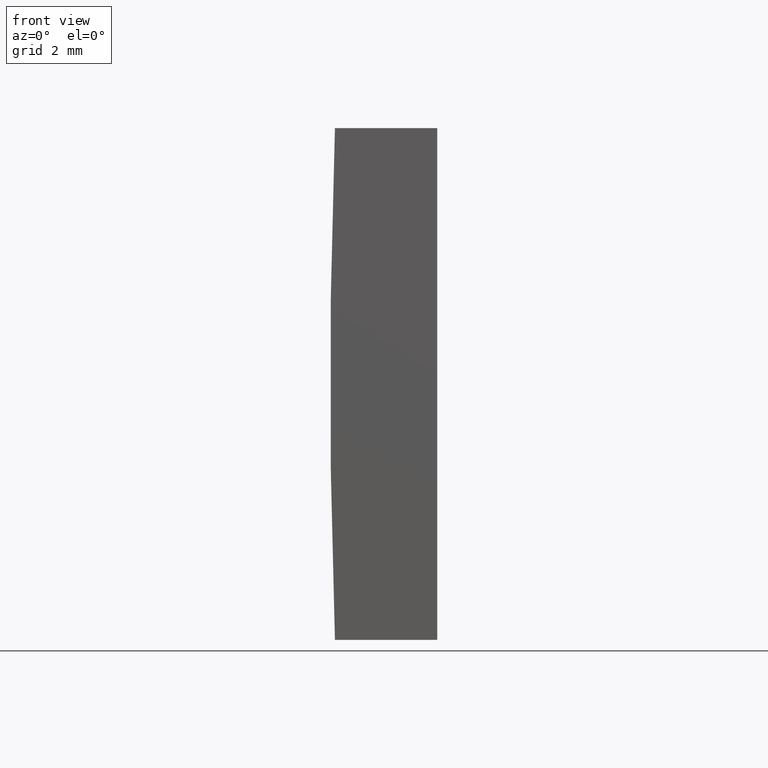
[diagram: clean part render]
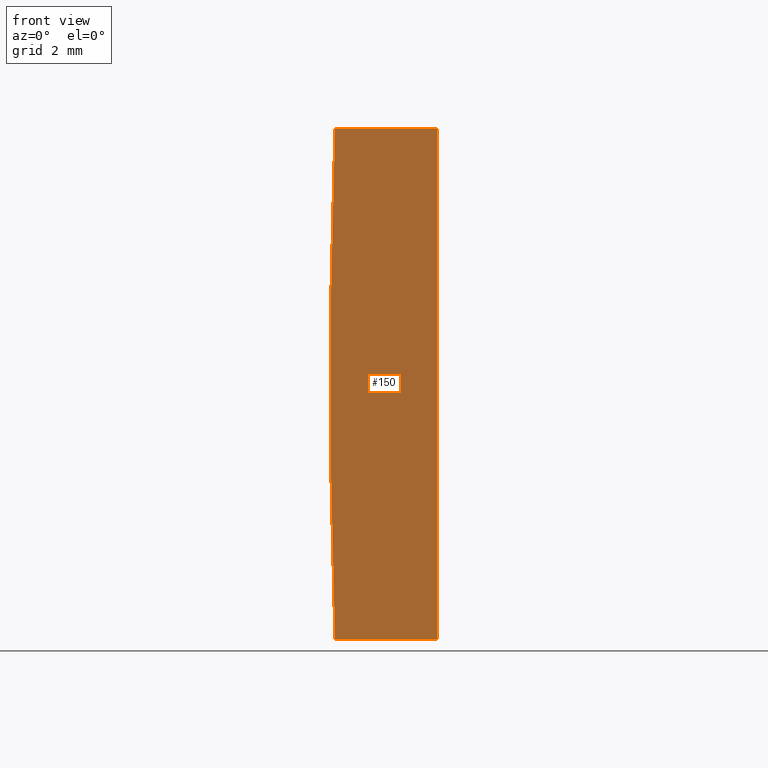
[diagram: same view with one face highlighted and labeled with its STEP entity id]
A machine part, front view. The second image highlights one B-rep face of the part: STEP entity #150.
In plain terms, the highlighted planar face has unit normal (0, 1, 0).
Its self-contained STEP definition (entity closure, byte-faithful):
#17 = EDGE_CURVE ( 'NONE', #131, #195, #155, .T. ) ;
#26 = DIRECTION ( 'NONE',  ( -0.0000000000000000000, -0.0000000000000000000, -1.000000000000000000 ) ) ;
#27 = CARTESIAN_POINT ( 'NONE',  ( -133.1038895803932300, 0.0000000000000000000, 5.000000000000000000 ) ) ;
#41 = EDGE_CURVE ( 'NONE', #177, #131, #77, .T. ) ;
#42 = EDGE_LOOP ( 'NONE', ( #159, #161, #85, #69 ) ) ;
#44 = LINE ( 'NONE', #27, #47 ) ;
#47 = VECTOR ( 'NONE', #74, 1000.000000000000000 ) ;
#53 = CARTESIAN_POINT ( 'NONE',  ( 4.355204334851265500, 0.0000000000000000000, 4.286263797015675000E-017 ) ) ;
#64 = CARTESIAN_POINT ( 'NONE',  ( -131.1047956651487700, 0.0000000000000000000, -4.999999999999987600 ) ) ;
#66 = DIRECTION ( 'NONE',  ( 0.0000000000000000000, 1.000000000000000000, 0.0000000000000000000 ) ) ;
#69 = ORIENTED_EDGE ( 'NONE', *, *, #140, .F. ) ;
#72 = VECTOR ( 'NONE', #187, 1000.000000000000000 ) ;
#73 = VECTOR ( 'NONE', #26, 1000.000000000000000 ) ;
#74 = DIRECTION ( 'NONE',  ( 1.000000000000000000, 0.0000000000000000000, 0.0000000000000000000 ) ) ;
#77 = LINE ( 'NONE', #64, #73 ) ;
#85 = ORIENTED_EDGE ( 'NONE', *, *, #41, .F. ) ;
#90 = DIRECTION ( 'NONE',  ( 0.0000000000000000000, 0.0000000000000000000, 1.000000000000000000 ) ) ;
#91 = CIRCLE ( 'NONE', #100, 137.5500000000000400 ) ;
#97 = PLANE ( 'NONE',  #183 ) ;
#100 = AXIS2_PLACEMENT_3D ( 'NONE', #148, #66, #90 ) ;
#117 = FACE_OUTER_BOUND ( 'NONE', #42, .T. ) ;
#130 = CARTESIAN_POINT ( 'NONE',  ( -133.1038895803932300, 0.0000000000000000000, -5.000000000000000000 ) ) ;
#131 = VERTEX_POINT ( 'NONE', #162 ) ;
#140 = EDGE_CURVE ( 'NONE', #191, #177, #44, .T. ) ;
#141 = CARTESIAN_POINT ( 'NONE',  ( -133.1038895803932300, 0.0000000000000000000, 5.000000000000000000 ) ) ;
#142 = CARTESIAN_POINT ( 'NONE',  ( -131.1047956651487700, 0.0000000000000000000, 5.000000000000000000 ) ) ;
#148 = CARTESIAN_POINT ( 'NONE',  ( 4.355204334851265500, 0.0000000000000000000, 4.286263797015675000E-017 ) ) ;
#149 = EDGE_CURVE ( 'NONE', #195, #191, #91, .T. ) ;
#150 = ADVANCED_FACE ( 'NONE', ( #117 ), #97, .F. ) ;
#155 = LINE ( 'NONE', #181, #72 ) ;
#159 = ORIENTED_EDGE ( 'NONE', *, *, #149, .F. ) ;
#161 = ORIENTED_EDGE ( 'NONE', *, *, #17, .F. ) ;
#162 = CARTESIAN_POINT ( 'NONE',  ( -131.1047956651487700, 0.0000000000000000000, -4.999999999999987600 ) ) ;
#167 = DIRECTION ( 'NONE',  ( 0.0000000000000000000, 1.000000000000000000, 0.0000000000000000000 ) ) ;
#177 = VERTEX_POINT ( 'NONE', #142 ) ;
#179 = DIRECTION ( 'NONE',  ( 0.0000000000000000000, -0.0000000000000000000, 1.000000000000000000 ) ) ;
#181 = CARTESIAN_POINT ( 'NONE',  ( -133.1038895803932300, 0.0000000000000000000, -5.000000000000000000 ) ) ;
#183 = AXIS2_PLACEMENT_3D ( 'NONE', #53, #167, #179 ) ;
#187 = DIRECTION ( 'NONE',  ( -1.000000000000000000, -0.0000000000000000000, -6.074284074018936100E-015 ) ) ;
#191 = VERTEX_POINT ( 'NONE', #141 ) ;
#195 = VERTEX_POINT ( 'NONE', #130 ) ;